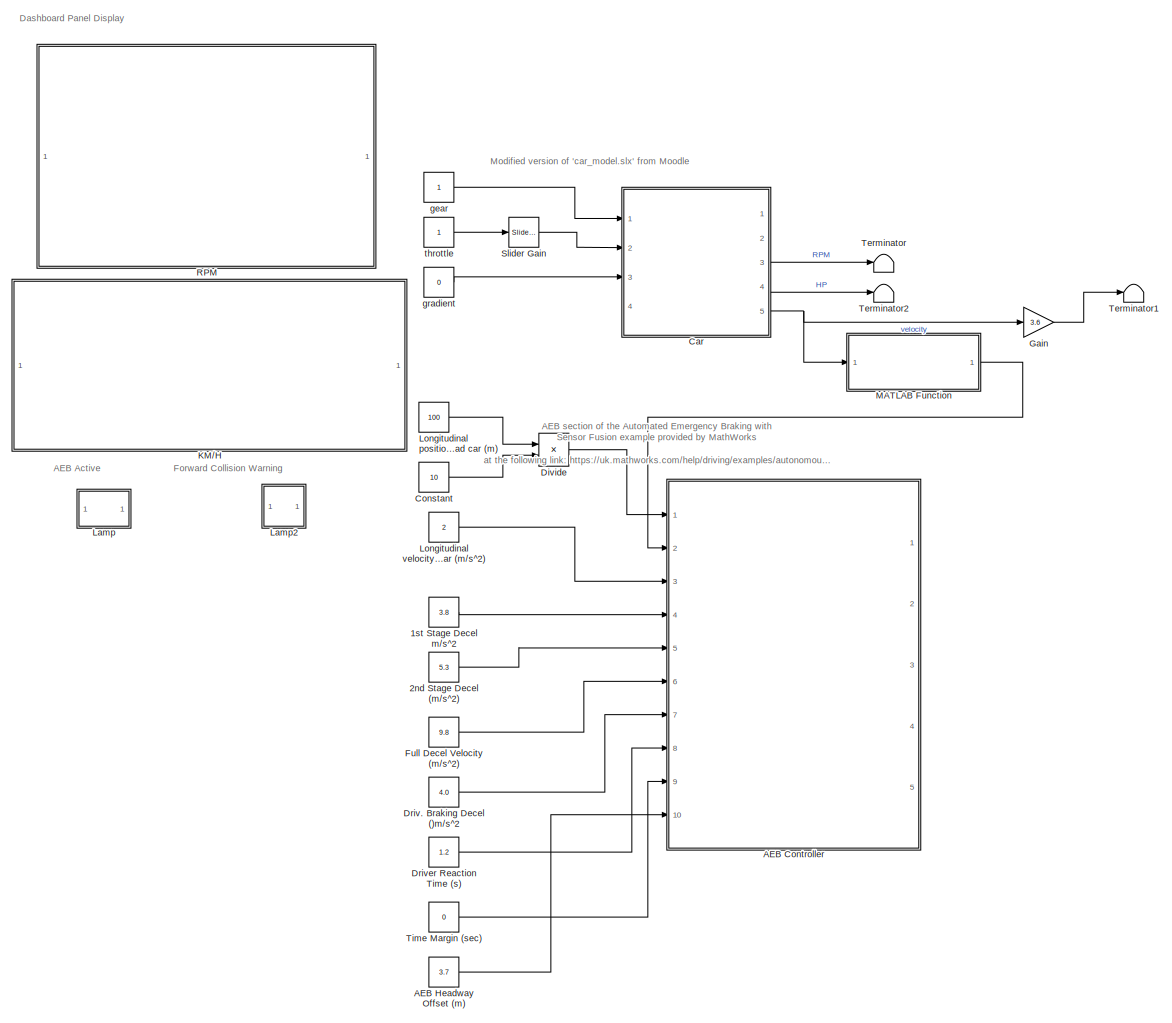
[diagram: root canvas - part 1/1, most of the canvas]
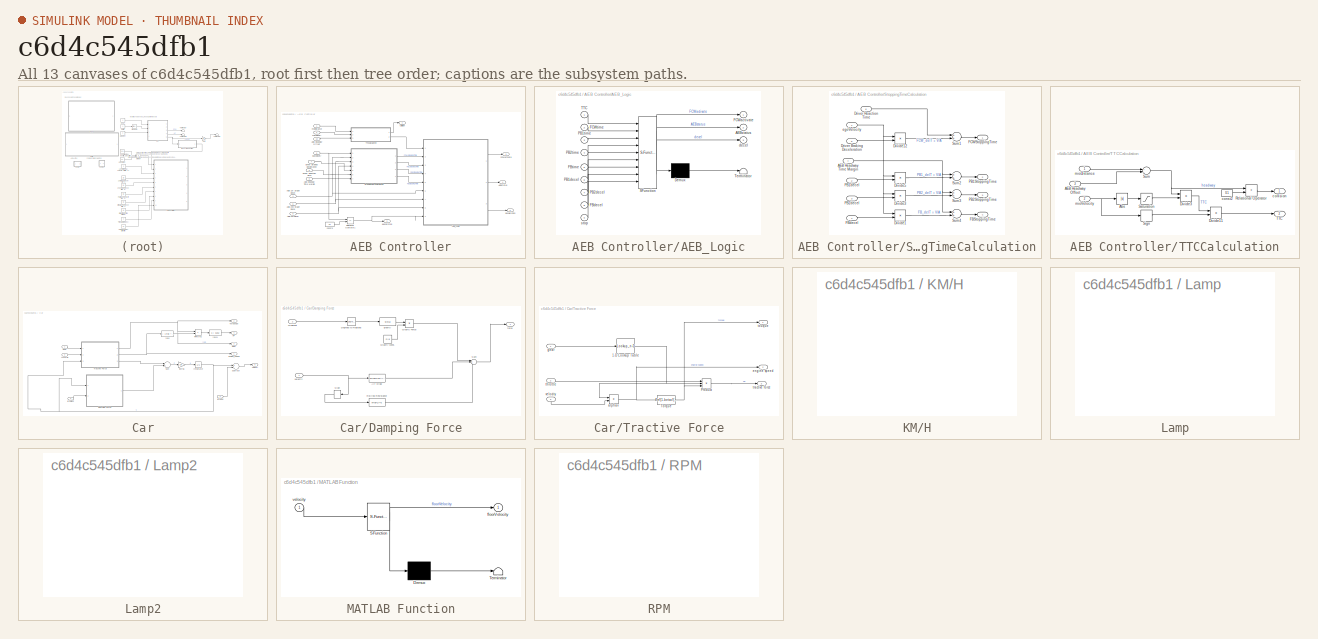
[diagram: thumbnail index - all 13 canvases of the model, root first then tree order]
MODEL slx_c6d4c545dfb1
KIND model
CONFIG AbsTol = auto
CONFIG EnableMultiTasking = on
CONFIG FixedStep = 0.1
CONFIG MaxStep = auto
CONFIG MinStep = auto
CONFIG RelTol = 1e-3
CONFIG SampleTimeConstraint = Unconstrained
CONFIG Solver = ode3
CONFIG SolverName = ode3
CONFIG StartTime = 0.0
CONFIG StopTime = inf
WORKSPACE source: MAT-file member
WORKSPACE MCOS: class17 (value not decoded)
WORKSPACE MCOS: class17 (value not decoded)
BLOCK [Constant] 1st Stage Decel m//s^2
  Value = 3.8
BLOCK [Constant] 2nd Stage Decel (m//s^2)
  Value = 5.3
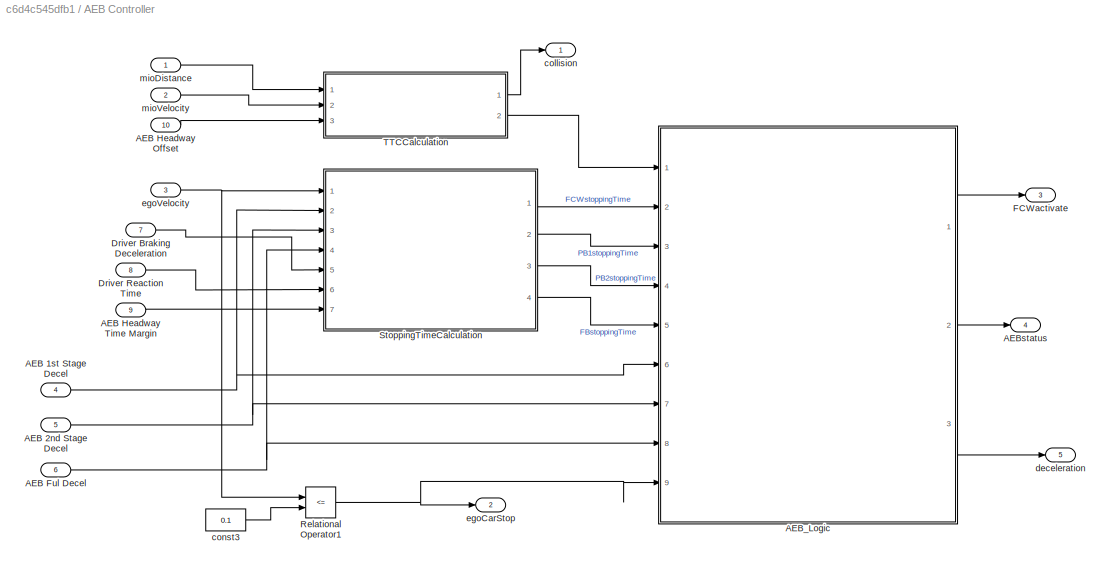
BLOCK [SubSystem] AEB Controller
  Ports = [10, 5]
  RequestExecContextInheritance = off
  Variant = off
BLOCK [Inport] AEB Controller/AEB 1st Stage Decel
  IconDisplay = Port number
  Port = 4
BLOCK [Inport] AEB Controller/AEB 2nd Stage Decel 
  IconDisplay = Port number
  Port = 5
BLOCK [Inport] AEB Controller/AEB Ful Decel
  IconDisplay = Port number
  Port = 6
BLOCK [Inport] AEB Controller/AEB Headway Offset
  IconDisplay = Port number
  Port = 10
BLOCK [Inport] AEB Controller/AEB Headway Time Margin
  IconDisplay = Port number
  Port = 9
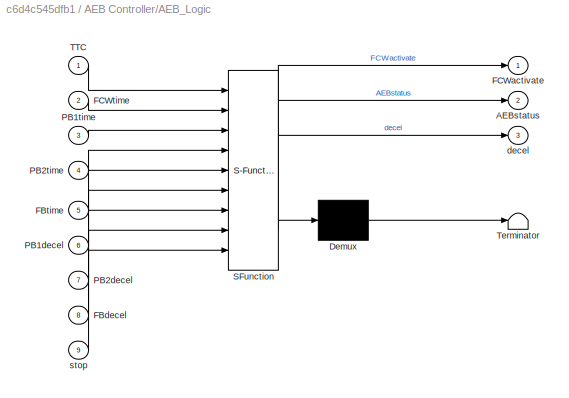
BLOCK [SubSystem] AEB Controller/AEB_Logic
  ErrorFcn = Stateflow.Translate.translate
  PermitHierarchicalResolution = ExplicitOnly
  Ports = [9, 3]
  RequestExecContextInheritance = off
  SFBlockType = Chart
  TreatAsAtomicUnit = on
  Variant = off
BLOCK [Demux] AEB Controller/AEB_Logic/ Demux 
  Outputs = 1
  Ports = [1, 1]
BLOCK [S-Function] AEB Controller/AEB_Logic/ SFunction 
  EnableBusSupport = on
  FunctionName = sf_sfun
  PortCounts = [9 4]
  Ports = [9, 4]
  SFcnIsStateOwnerBlock = off
  SFunctionDeploymentMode = off
  Tag = Stateflow S-Function cfarrell_assign2OLD 5
BLOCK [Terminator] AEB Controller/AEB_Logic/ Terminator 
BLOCK [Outport] AEB Controller/AEB_Logic/AEBstatus
  IconDisplay = Port number
  Port = 2
BLOCK [Inport] AEB Controller/AEB_Logic/FBdecel
  IconDisplay = Port number
  Port = 8
BLOCK [Inport] AEB Controller/AEB_Logic/FBtime
  IconDisplay = Port number
  Port = 5
BLOCK [Outport] AEB Controller/AEB_Logic/FCWactivate
  IconDisplay = Port number
BLOCK [Inport] AEB Controller/AEB_Logic/FCWtime
  IconDisplay = Port number
  Port = 2
BLOCK [Inport] AEB Controller/AEB_Logic/PB1decel
  IconDisplay = Port number
  Port = 6
BLOCK [Inport] AEB Controller/AEB_Logic/PB1time
  IconDisplay = Port number
  Port = 3
BLOCK [Inport] AEB Controller/AEB_Logic/PB2decel
  IconDisplay = Port number
  Port = 7
BLOCK [Inport] AEB Controller/AEB_Logic/PB2time
  IconDisplay = Port number
  Port = 4
BLOCK [Inport] AEB Controller/AEB_Logic/TTC
  IconDisplay = Port number
BLOCK [Outport] AEB Controller/AEB_Logic/decel
  IconDisplay = Port number
  Port = 3
BLOCK [Inport] AEB Controller/AEB_Logic/stop
  IconDisplay = Port number
  Port = 9
BLOCK [Outport] AEB Controller/AEBstatus
  IconDisplay = Port number
  Port = 4
BLOCK [Inport] AEB Controller/Driver Braking Deceleration
  IconDisplay = Port number
  Port = 7
BLOCK [Inport] AEB Controller/Driver Reaction Time
  IconDisplay = Port number
  Port = 8
BLOCK [Outport] AEB Controller/FCWactivate
  IconDisplay = Port number
  Port = 3
BLOCK [RelationalOperator] AEB Controller/Relational Operator1
  InputSameDT = off
  Operator = <=
  OutDataTypeStr = boolean
  Ports = [2, 1]
  RndMeth = Simplest
BLOCK [SubSystem] AEB Controller/StoppingTimeCalculation
  Ports = [7, 4]
  RequestExecContextInheritance = off
  Variant = off
BLOCK [Inport] AEB Controller/StoppingTimeCalculation/AEB Headway Time Margin
  IconDisplay = Port number
  Port = 7
BLOCK [Product] AEB Controller/StoppingTimeCalculation/Divide1
  InputSameDT = off
  Inputs = */
  OutDataTypeStr = Inherit: Inherit via internal rule
  Ports = [2, 1]
  RndMeth = Floor
  SaturateOnIntegerOverflow = off
BLOCK [Product] AEB Controller/StoppingTimeCalculation/Divide12
  InputSameDT = off
  Inputs = */
  OutDataTypeStr = Inherit: Inherit via internal rule
  Ports = [2, 1]
  RndMeth = Floor
  SaturateOnIntegerOverflow = off
BLOCK [Product] AEB Controller/StoppingTimeCalculation/Divide3
  InputSameDT = off
  Inputs = */
  OutDataTypeStr = Inherit: Inherit via internal rule
  Ports = [2, 1]
  RndMeth = Floor
  SaturateOnIntegerOverflow = off
BLOCK [Product] AEB Controller/StoppingTimeCalculation/Divide5
  InputSameDT = off
  Inputs = */
  OutDataTypeStr = Inherit: Inherit via internal rule
  Ports = [2, 1]
  RndMeth = Floor
  SaturateOnIntegerOverflow = off
BLOCK [Inport] AEB Controller/StoppingTimeCalculation/Driver Braking Deceleration
  IconDisplay = Port number
  Port = 5
BLOCK [Inport] AEB Controller/StoppingTimeCalculation/Driver Reaction Time
  IconDisplay = Port number
  Port = 6
BLOCK [Outport] AEB Controller/StoppingTimeCalculation/FBStoppingTime
  IconDisplay = Port number
  Port = 4
BLOCK [Inport] AEB Controller/StoppingTimeCalculation/FBdecel
  IconDisplay = Port number
  Port = 4
BLOCK [Outport] AEB Controller/StoppingTimeCalculation/FCWStoppingTime
  IconDisplay = Port number
BLOCK [Outport] AEB Controller/StoppingTimeCalculation/PB1StoppingTime
  IconDisplay = Port number
  Port = 2
BLOCK [Inport] AEB Controller/StoppingTimeCalculation/PB1decel
  IconDisplay = Port number
  Port = 2
BLOCK [Outport] AEB Controller/StoppingTimeCalculation/PB2StoppingTime
  IconDisplay = Port number
  Port = 3
BLOCK [Inport] AEB Controller/StoppingTimeCalculation/PB2decel
  IconDisplay = Port number
  Port = 3
BLOCK [Sum] AEB Controller/StoppingTimeCalculation/Sum1
  InputSameDT = off
  OutDataTypeStr = Inherit: Inherit via internal rule
  Ports = [2, 1]
  SaturateOnIntegerOverflow = off
BLOCK [Sum] AEB Controller/StoppingTimeCalculation/Sum2
  InputSameDT = off
  OutDataTypeStr = Inherit: Inherit via internal rule
  Ports = [2, 1]
  SaturateOnIntegerOverflow = off
BLOCK [Sum] AEB Controller/StoppingTimeCalculation/Sum3
  InputSameDT = off
  OutDataTypeStr = Inherit: Inherit via internal rule
  Ports = [2, 1]
  SaturateOnIntegerOverflow = off
BLOCK [Sum] AEB Controller/StoppingTimeCalculation/Sum4
  InputSameDT = off
  OutDataTypeStr = Inherit: Inherit via internal rule
  Ports = [2, 1]
  SaturateOnIntegerOverflow = off
BLOCK [Inport] AEB Controller/StoppingTimeCalculation/egoVelocity
  IconDisplay = Port number
BLOCK [SubSystem] AEB Controller/TTCCalculation
  Ports = [3, 2]
  RequestExecContextInheritance = off
  Variant = off
BLOCK [Inport] AEB Controller/TTCCalculation/AEB Headway Offset
  IconDisplay = Port number
  Port = 3
BLOCK [Abs] AEB Controller/TTCCalculation/Abs
  SaturateOnIntegerOverflow = off
BLOCK [Product] AEB Controller/TTCCalculation/Divide11
  InputSameDT = off
  Inputs = **
  OutDataTypeStr = Inherit: Inherit via internal rule
  Ports = [2, 1]
  RndMeth = Floor
  SaturateOnIntegerOverflow = off
BLOCK [Product] AEB Controller/TTCCalculation/Divide3
  InputSameDT = off
  Inputs = */
  OutDataTypeStr = Inherit: Inherit via internal rule
  Ports = [2, 1]
  RndMeth = Floor
  SaturateOnIntegerOverflow = off
BLOCK [RelationalOperator] AEB Controller/TTCCalculation/Relational Operator
  InputSameDT = off
  Operator = <
  OutDataTypeStr = boolean
  Ports = [2, 1]
  RndMeth = Simplest
BLOCK [Saturate] AEB Controller/TTCCalculation/Saturation
  InputPortMap = u0
  LowerLimit = 0.01
  Ports = [1, 1]
  UpperLimit = 100
BLOCK [Signum] AEB Controller/TTCCalculation/Sign
BLOCK [Sum] AEB Controller/TTCCalculation/Sum
  InputSameDT = off
  Inputs = +-
  OutDataTypeStr = Inherit: Inherit via internal rule
  Ports = [2, 1]
  SaturateOnIntegerOverflow = off
BLOCK [Outport] AEB Controller/TTCCalculation/TTC
  IconDisplay = Port number
  Port = 2
BLOCK [Outport] AEB Controller/TTCCalculation/collision
  IconDisplay = Port number
BLOCK [Constant] AEB Controller/TTCCalculation/const2
  SampleTime = -1
  Value = 0.1
BLOCK [Inport] AEB Controller/TTCCalculation/mioDistance
  IconDisplay = Port number
BLOCK [Inport] AEB Controller/TTCCalculation/mioVelocity
  IconDisplay = Port number
  Port = 2
BLOCK [Outport] AEB Controller/collision
  IconDisplay = Port number
BLOCK [Constant] AEB Controller/const3
  SampleTime = -1
  Value = 0.1
BLOCK [Outport] AEB Controller/deceleration
  IconDisplay = Port number
  Port = 5
BLOCK [Outport] AEB Controller/egoCarStop
  IconDisplay = Port number
  Port = 2
BLOCK [Inport] AEB Controller/egoVelocity
  IconDisplay = Port number
  Port = 3
BLOCK [Inport] AEB Controller/mioDistance
  IconDisplay = Port number
BLOCK [Inport] AEB Controller/mioVelocity
  IconDisplay = Port number
  Port = 2
BLOCK [Constant] AEB Headway Offset (m)
  Value = 3.7
BLOCK [SubSystem] Car
  Ports = [4, 5]
  RequestExecContextInheritance = off
  Variant = off
BLOCK [Inport] Car/Braking
  IconDisplay = Port number
  Port = 4
BLOCK [SubSystem] Car/Damping Force
  Ports = [2, 1]
  RequestExecContextInheritance = off
  Variant = off
BLOCK [Fcn] Car/Damping Force/Air Drag
  Expr = 0.5*rho*Cd*A*(u^2)
BLOCK [Reference] Car/Damping Force/Degrees to Radians  REF=simulink_extras/Transformations/Degrees to
Radians
  Ports = [1, 1]
  SourceBlock = simulink_extras/Transformations/Degrees to\nRadians
  SourceProductBaseCode = SL
  SourceProductName = Simulink
  SourceType = DegreesToRadians
BLOCK [Inport] Car/Damping Force/Gradient
  IconDisplay = Port number
  Port = 2
BLOCK [Product] Car/Damping Force/Gravity Force
  InputSameDT = off
  OutDataTypeStr = Inherit: Inherit via internal rule
  Ports = [2, 1]
  RndMeth = Floor
  SaturateOnIntegerOverflow = off
BLOCK [Constant] Car/Damping Force/Gravity const.
  Value = m*g
BLOCK [Fcn] Car/Damping Force/Rolling Resistance
  Expr = m*g*Cr*u
BLOCK [Signum] Car/Damping Force/Sign
BLOCK [Sum] Car/Damping Force/Sum
  IconShape = round
  InputSameDT = off
  Inputs = |+++
  OutDataTypeStr = Inherit: Inherit via internal rule
  Ports = [3, 1]
  SaturateOnIntegerOverflow = off
BLOCK [Outport] Car/Damping Force/force
  IconDisplay = Port number
BLOCK [Fcn] Car/Damping Force/gravity
  Expr = sin(u)
BLOCK [Inport] Car/Damping Force/velocity
  IconDisplay = Port number
BLOCK [Outport] Car/HP
  IconDisplay = Port number
  Port = 4
BLOCK [Integrator] Car/Integrator
  Ports = [1, 1]
BLOCK [Outport] Car/RPM
  IconDisplay = Port number
  Port = 3
BLOCK [Product] Car/RPMxTQ
  InputSameDT = off
  OutDataTypeStr = Inherit: Inherit via internal rule
  Ports = [2, 1]
  RndMeth = Floor
  SaturateOnIntegerOverflow = off
BLOCK [Sum] Car/Subtract
  InputSameDT = off
  Inputs = +-
  OutDataTypeStr = Inherit: Inherit via internal rule
  OutMin = 0
  Ports = [2, 1]
  RndMeth = Round
BLOCK [Sum] Car/Sum
  IconShape = round
  InputSameDT = off
  Inputs = |+-
  OutDataTypeStr = Inherit: Inherit via internal rule
  Ports = [2, 1]
  SaturateOnIntegerOverflow = off
BLOCK [Outport] Car/TorqueOut
  IconDisplay = Port number
  Port = 2
BLOCK [SubSystem] Car/Tractive Force
  Ports = [3, 3]
  RequestExecContextInheritance = off
  Variant = off
BLOCK [Lookup_n-D] Car/Tractive Force/1-D Lookup Table
  BreakpointsForDimension1 = int16([1,2,3,4,5]);
  InternalRulePriority = Speed
  NumberOfTableDimensions = 1
  Ports = [1, 1]
  RndMeth = Simplest
  Table = int16([40,25,16,12,10]);
BLOCK [Product] Car/Tractive Force/Product
  InputSameDT = off
  Inputs = 3
  OutDataTypeStr = Inherit: Inherit via internal rule
  Ports = [3, 1]
  RndMeth = Floor
  SaturateOnIntegerOverflow = off
BLOCK [Fcn] Car/Tractive Force/Torque
  Expr = Tm*(1-betac*((u/omegam)-1)^2)
BLOCK [Product] Car/Tractive Force/alphav
  InputSameDT = off
  OutDataTypeStr = Inherit: Inherit via internal rule
  Ports = [2, 1]
  RndMeth = Floor
  SaturateOnIntegerOverflow = off
BLOCK [Outport] Car/Tractive Force/engine speed
  IconDisplay = Port number
  Port = 2
BLOCK [Inport] Car/Tractive Force/gear
  IconDisplay = Port number
BLOCK [Inport] Car/Tractive Force/throttle
  IconDisplay = Port number
  Port = 2
BLOCK [Outport] Car/Tractive Force/touque
  IconDisplay = Port number
BLOCK [Outport] Car/Tractive Force/tractive force
  IconDisplay = Port number
  Port = 3
BLOCK [Inport] Car/Tractive Force/velocity
  IconDisplay = Port number
  Port = 3
BLOCK [Outport] Car/engine_speed
  IconDisplay = Port number
BLOCK [Inport] Car/gear
  IconDisplay = Port number
BLOCK [Inport] Car/gradient
  IconDisplay = Port number
  Port = 3
BLOCK [Gain] Car/inertia
  Gain = 1/m
  OutDataTypeStr = Inherit: Inherit via internal rule
  ParamDataTypeStr = Inherit: Inherit via internal rule
  SaturateOnIntegerOverflow = off
BLOCK [Fcn] Car/revs
  Expr = u / (2*pi) * 60
BLOCK [Fcn] Car/revs1
  Expr = u / 5252
BLOCK [Inport] Car/throttle
  IconDisplay = Port number
  OutMax = 1
  OutMin = 0
  Port = 2
BLOCK [Outport] Car/velocity
  IconDisplay = Port number
  Port = 5
BLOCK [Constant] Constant
  Value = 10
BLOCK [Product] Divide
  InputSameDT = off
  Inputs = */
  OutDataTypeStr = Inherit: Inherit via internal rule
  Ports = [2, 1]
  RndMeth = Floor
  SaturateOnIntegerOverflow = off
BLOCK [Constant] Driv. Braking Decel ()m//s^2
  Value = 4.0
BLOCK [Constant] Driver Reaction Time  (s)
  Value = 1.2
BLOCK [Constant] Full Decel Velocity (m//s^2)
  Value = 9.8
BLOCK [Gain] Gain
  Gain = 3.6
  OutDataTypeStr = Inherit: Inherit via internal rule
  OutMin = 0
  ParamDataTypeStr = Inherit: Inherit via internal rule
  SaturateOnIntegerOverflow = off
BLOCK [SubSystem] KM//H
  DialogController = hmiCreateDDGDialog
  IsWebBlock = on
  Ports = []
  RequestExecContextInheritance = off
  Variant = off
BLOCK [SubSystem] Lamp
  DialogController = hmiCreateDDGDialog
  IsWebBlock = on
  Ports = []
  RequestExecContextInheritance = off
  Variant = off
BLOCK [SubSystem] Lamp2
  DialogController = hmiCreateDDGDialog
  IsWebBlock = on
  Ports = []
  RequestExecContextInheritance = off
  Variant = off
BLOCK [Constant] Longitudinal position of the lead car (m)
  Value = 100
BLOCK [Constant] Longitudinal velocity of the lead car (m//s^2)
  Value = 2
BLOCK [SubSystem] MATLAB Function
  ErrorFcn = Stateflow.Translate.translate
  PermitHierarchicalResolution = ExplicitOnly
  Ports = [1, 1]
  RequestExecContextInheritance = off
  SFBlockType = MATLAB Function
  TreatAsAtomicUnit = on
  Variant = off
BLOCK [Demux] MATLAB Function/ Demux 
  Outputs = 1
  Ports = [1, 1]
BLOCK [S-Function] MATLAB Function/ SFunction 
  EnableBusSupport = on
  FunctionName = sf_sfun
  PortCounts = [1 2]
  Ports = [1, 2]
  SFcnIsStateOwnerBlock = off
  SFunctionDeploymentMode = off
  Tag = Stateflow S-Function cfarrell_assign2OLD 2
BLOCK [Terminator] MATLAB Function/ Terminator 
BLOCK [Outport] MATLAB Function/floorVelocity
  IconDisplay = Port number
BLOCK [Inport] MATLAB Function/velocity
  IconDisplay = Port number
BLOCK [SubSystem] RPM
  DialogController = hmiCreateDDGDialog
  IsWebBlock = on
  Ports = []
  RequestExecContextInheritance = off
  Variant = off
BLOCK [Reference] Slider Gain  REF=simulink/Math
Operations/Slider
Gain
  Ports = [1, 1]
  SourceBlock = simulink/Math\nOperations/Slider\nGain
  SourceProductBaseCode = SL
  SourceProductName = Simulink
  SourceType = Slider Gain
BLOCK [Terminator] Terminator
BLOCK [Terminator] Terminator1
BLOCK [Terminator] Terminator2
BLOCK [Constant] Time Margin (sec)
  Value = 0
BLOCK [Constant] gear
BLOCK [Constant] gradient
  Value = 0
BLOCK [Constant] throttle
ANNOTATION (root): AEB Active
ANNOTATION (root): AEB section of the Automated Emergency Braking with Sensor Fusion example provided by MathWorks at the following link: https://uk.mathworks.com/help/driving/examples/autonomous-emergency-braking-with-sensor-fusion.html
ANNOTATION (root): Dashboard Panel Display
ANNOTATION (root): Forward Collision Warning
ANNOTATION (root): Modified version of 'car_model.slx' from Moodle
LINE 1st Stage Decel m//s^2:1 -> AEB Controller:4
LINE 2nd Stage Decel (m//s^2):1 -> AEB Controller:5
NET AEB Controller/AEB 1st Stage Decel:1 -> AEB Controller/AEB_Logic:6, AEB Controller/StoppingTimeCalculation:2
NET AEB Controller/AEB 2nd Stage Decel :1 -> AEB Controller/AEB_Logic:7, AEB Controller/StoppingTimeCalculation:3
NET AEB Controller/AEB Ful Decel:1 -> AEB Controller/AEB_Logic:8, AEB Controller/StoppingTimeCalculation:4
LINE AEB Controller/AEB Headway Offset:1 -> AEB Controller/TTCCalculation:3
LINE AEB Controller/AEB Headway Time Margin:1 -> AEB Controller/StoppingTimeCalculation:7
LINE AEB Controller/AEB_Logic:1 -> AEB Controller/FCWactivate:1
LINE AEB Controller/AEB_Logic:2 -> AEB Controller/AEBstatus:1
LINE AEB Controller/AEB_Logic:3 -> AEB Controller/deceleration:1
LINE AEB Controller/Driver Braking Deceleration:1 -> AEB Controller/StoppingTimeCalculation:5
LINE AEB Controller/Driver Reaction Time:1 -> AEB Controller/StoppingTimeCalculation:6
NET AEB Controller/Relational Operator1:1 -> AEB Controller/AEB_Logic:9, AEB Controller/egoCarStop:1
NET AEB Controller/StoppingTimeCalculation/AEB Headway Time Margin:1 -> AEB Controller/StoppingTimeCalculation/Sum2:1, AEB Controller/StoppingTimeCalculation/Sum3:1, AEB Controller/StoppingTimeCalculation/Sum4:1
LINE AEB Controller/StoppingTimeCalculation/Divide12:1 -> AEB Controller/StoppingTimeCalculation/Sum1:2
LINE AEB Controller/StoppingTimeCalculation/Divide1:1 -> AEB Controller/StoppingTimeCalculation/Sum4:2
LINE AEB Controller/StoppingTimeCalculation/Divide3:1 -> AEB Controller/StoppingTimeCalculation/Sum3:2
LINE AEB Controller/StoppingTimeCalculation/Divide5:1 -> AEB Controller/StoppingTimeCalculation/Sum2:2
LINE AEB Controller/StoppingTimeCalculation/Driver Braking Deceleration:1 -> AEB Controller/StoppingTimeCalculation/Divide12:2
LINE AEB Controller/StoppingTimeCalculation/Driver Reaction Time:1 -> AEB Controller/StoppingTimeCalculation/Sum1:1
LINE AEB Controller/StoppingTimeCalculation/FBdecel:1 -> AEB Controller/StoppingTimeCalculation/Divide1:2
LINE AEB Controller/StoppingTimeCalculation/PB1decel:1 -> AEB Controller/StoppingTimeCalculation/Divide5:2
LINE AEB Controller/StoppingTimeCalculation/PB2decel:1 -> AEB Controller/StoppingTimeCalculation/Divide3:2
LINE AEB Controller/StoppingTimeCalculation/Sum1:1 -> AEB Controller/StoppingTimeCalculation/FCWStoppingTime:1
LINE AEB Controller/StoppingTimeCalculation/Sum2:1 -> AEB Controller/StoppingTimeCalculation/PB1StoppingTime:1
LINE AEB Controller/StoppingTimeCalculation/Sum3:1 -> AEB Controller/StoppingTimeCalculation/PB2StoppingTime:1
LINE AEB Controller/StoppingTimeCalculation/Sum4:1 -> AEB Controller/StoppingTimeCalculation/FBStoppingTime:1
NET AEB Controller/StoppingTimeCalculation/egoVelocity:1 -> AEB Controller/StoppingTimeCalculation/Divide12:1, AEB Controller/StoppingTimeCalculation/Divide1:1, AEB Controller/StoppingTimeCalculation/Divide3:1, AEB Controller/StoppingTimeCalculation/Divide5:1
LINE AEB Controller/StoppingTimeCalculation:1 -> AEB Controller/AEB_Logic:2
LINE AEB Controller/StoppingTimeCalculation:2 -> AEB Controller/AEB_Logic:3
LINE AEB Controller/StoppingTimeCalculation:3 -> AEB Controller/AEB_Logic:4
LINE AEB Controller/StoppingTimeCalculation:4 -> AEB Controller/AEB_Logic:5
LINE AEB Controller/TTCCalculation/AEB Headway Offset:1 -> AEB Controller/TTCCalculation/Sum:2
LINE AEB Controller/TTCCalculation/Abs:1 -> AEB Controller/TTCCalculation/Saturation:1
LINE AEB Controller/TTCCalculation/Divide11:1 -> AEB Controller/TTCCalculation/TTC:1
LINE AEB Controller/TTCCalculation/Divide3:1 -> AEB Controller/TTCCalculation/Divide11:1
LINE AEB Controller/TTCCalculation/Relational Operator:1 -> AEB Controller/TTCCalculation/collision:1
LINE AEB Controller/TTCCalculation/Saturation:1 -> AEB Controller/TTCCalculation/Divide3:2
LINE AEB Controller/TTCCalculation/Sign:1 -> AEB Controller/TTCCalculation/Divide11:2
NET AEB Controller/TTCCalculation/Sum:1 -> AEB Controller/TTCCalculation/Divide3:1, AEB Controller/TTCCalculation/Relational Operator:1
LINE AEB Controller/TTCCalculation/const2:1 -> AEB Controller/TTCCalculation/Relational Operator:2
LINE AEB Controller/TTCCalculation/mioDistance:1 -> AEB Controller/TTCCalculation/Sum:1
NET AEB Controller/TTCCalculation/mioVelocity:1 -> AEB Controller/TTCCalculation/Abs:1, AEB Controller/TTCCalculation/Sign:1
LINE AEB Controller/TTCCalculation:1 -> AEB Controller/collision:1
LINE AEB Controller/TTCCalculation:2 -> AEB Controller/AEB_Logic:1
LINE AEB Controller/const3:1 -> AEB Controller/Relational Operator1:2
NET AEB Controller/egoVelocity:1 -> AEB Controller/Relational Operator1:1, AEB Controller/StoppingTimeCalculation:1
LINE AEB Controller/mioDistance:1 -> AEB Controller/TTCCalculation:1
LINE AEB Controller/mioVelocity:1 -> AEB Controller/TTCCalculation:2
LINE AEB Headway Offset (m):1 -> AEB Controller:10
LINE Car/Braking:1 -> Car/Subtract:2
LINE Car/Damping Force/Air Drag:1 -> Car/Damping Force/Sum:2
LINE Car/Damping Force/Degrees to Radians:1 -> Car/Damping Force/gravity:1
LINE Car/Damping Force/Gradient:1 -> Car/Damping Force/Degrees to Radians:1
LINE Car/Damping Force/Gravity Force:1 -> Car/Damping Force/Sum:1
LINE Car/Damping Force/Gravity const.:1 -> Car/Damping Force/Gravity Force:2
LINE Car/Damping Force/Rolling Resistance:1 -> Car/Damping Force/Sum:3
LINE Car/Damping Force/Sign:1 -> Car/Damping Force/Rolling Resistance:1
LINE Car/Damping Force/Sum:1 -> Car/Damping Force/force:1
LINE Car/Damping Force/gravity:1 -> Car/Damping Force/Gravity Force:1
NET Car/Damping Force/velocity:1 -> Car/Damping Force/Air Drag:1, Car/Damping Force/Sign:1
LINE Car/Damping Force:1 -> Car/Sum:2
NET Car/Integrator:1 -> Car/Damping Force:1, Car/Subtract:1, Car/Tractive Force:3
LINE Car/RPMxTQ:1 -> Car/revs1:1
LINE Car/Subtract:1 -> Car/velocity:1
LINE Car/Sum:1 -> Car/inertia:1
NET Car/Tractive Force/1-D Lookup Table:1 -> Car/Tractive Force/Product:2, Car/Tractive Force/alphav:1
LINE Car/Tractive Force/Product:1 -> Car/Tractive Force/tractive force:1
NET Car/Tractive Force/Torque:1 -> Car/Tractive Force/Product:3, Car/Tractive Force/touque:1
NET Car/Tractive Force/alphav:1 -> Car/Tractive Force/Torque:1, Car/Tractive Force/engine speed:1
LINE Car/Tractive Force/gear:1 -> Car/Tractive Force/1-D Lookup Table:1
LINE Car/Tractive Force/throttle:1 -> Car/Tractive Force/Product:1
LINE Car/Tractive Force/velocity:1 -> Car/Tractive Force/alphav:2
NET Car/Tractive Force:1 -> Car/RPMxTQ:1, Car/TorqueOut:1
NET Car/Tractive Force:2 -> Car/engine_speed:1, Car/revs:1
LINE Car/Tractive Force:3 -> Car/Sum:1
LINE Car/gear:1 -> Car/Tractive Force:1
LINE Car/gradient:1 -> Car/Damping Force:2
LINE Car/inertia:1 -> Car/Integrator:1
LINE Car/revs1:1 -> Car/HP:1
NET Car/revs:1 -> Car/RPM:1, Car/RPMxTQ:2
LINE Car/throttle:1 -> Car/Tractive Force:2
LINE Car:3 -> Terminator:1
LINE Car:4 -> Terminator2:1
NET Car:5 -> Gain:1, MATLAB Function:1
LINE Constant:1 -> Divide:2
LINE Divide:1 -> AEB Controller:1
LINE Driv. Braking Decel ()m//s^2:1 -> AEB Controller:7
LINE Driver Reaction Time  (s):1 -> AEB Controller:8
LINE Full Decel Velocity (m//s^2):1 -> AEB Controller:6
LINE Gain:1 -> Terminator1:1
LINE Longitudinal position of the lead car (m):1 -> Divide:1
LINE Longitudinal velocity of the lead car (m//s^2):1 -> AEB Controller:3
LINE MATLAB Function:1 -> AEB Controller:2
LINE Slider Gain:1 -> Car:2
LINE Time Margin (sec):1 -> AEB Controller:9
LINE gear:1 -> Car:1
LINE gradient:1 -> Car:3
LINE throttle:1 -> Slider Gain:1
note: NET lines group one-source signal fan-out (src -> all destinations, sorted); 1:1 wires keep LINE
CHART MATLAB Function states=1 transitions=1
  STATE_LABEL 'eML_blk_kernel()'
  STATE_LABEL 'SCRIPT:\nfunction floorVelocity = fcn(velocity)\nif velocity<0\n    floorVelocity = 0;\nelse\n    floorVelocity = velocity;\nend'
CHART AEB Controller/AEB_Logic states=6 transitions=9
  STATE_LABEL 'FCW/AEB Logic'
  STATE_LABEL 'Default\nentry: AEBstatus = 0;\n FCWactivate = 0;\n decel = 0;\n'
  STATE_LABEL 'FCW\nentry: AEBstatus = 0;\n FCWactivate = 1;\n decel = 0;\n'
  STATE_LABEL 'Partial_Braking1\nentry: AEBstatus = 1;\n FCWactivate = 1;\n decel = PB1decel;\n'
  STATE_LABEL 'Full_Braking\nentry: AEBstatus = 3;\n FCWactivate = 1;\n decel = FBdecel;\n'
  STATE_LABEL 'Partial_Braking2\nentry: AEBstatus = 2;\n FCWactivate = 1;\n decel = PB2decel;\n'
